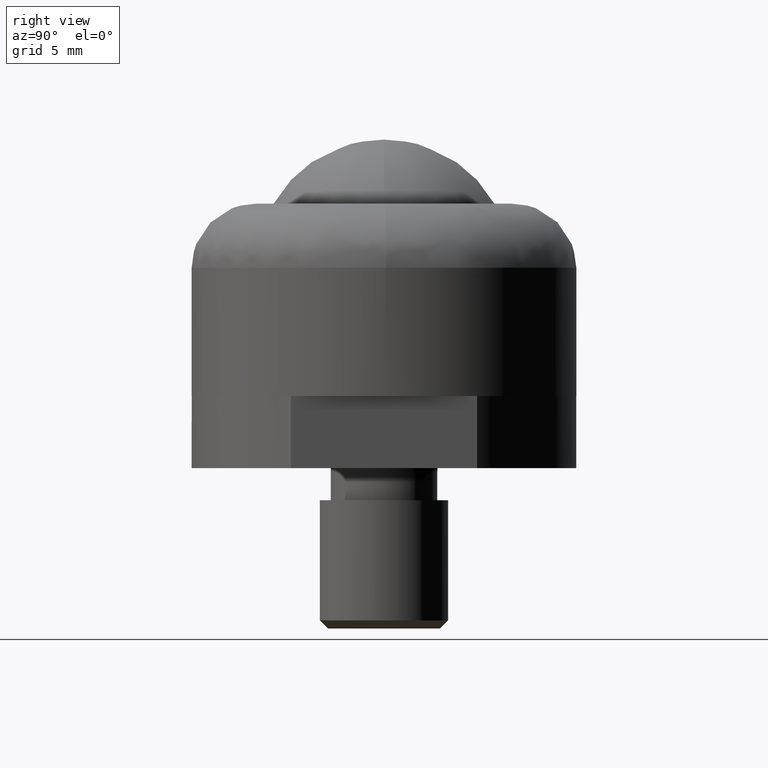
[diagram: clean part render]
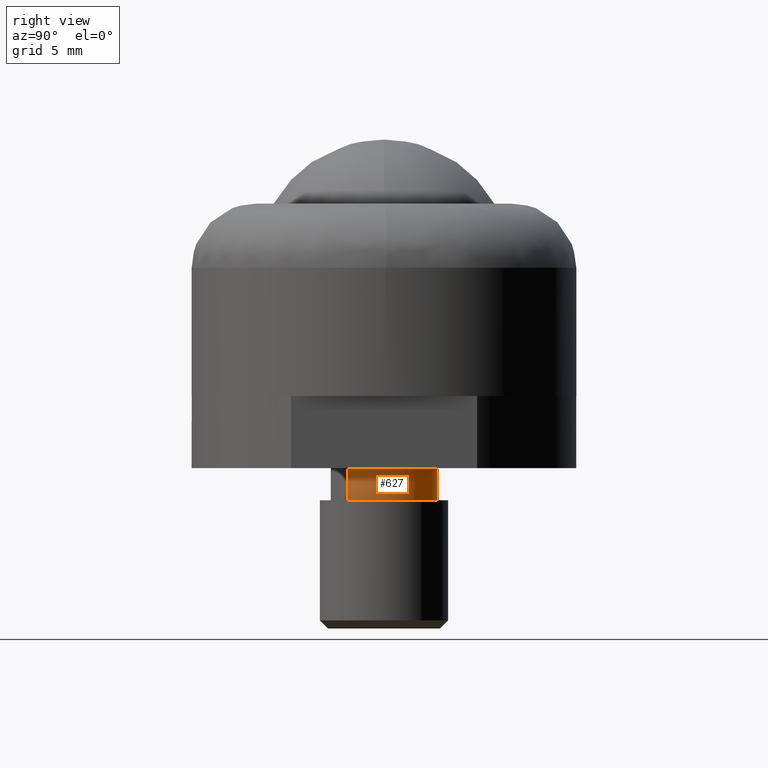
[diagram: same view with one face highlighted and labeled with its STEP entity id]
A machine part, right view. The second image highlights one B-rep face of the part: STEP entity #627.
In plain terms, the highlighted face is a freeform B-spline surface patch.
Its self-contained STEP definition (entity closure, byte-faithful):
#408=CARTESIAN_POINT('',(0.000000444371019,3.323499999999970,-6.500000000000000));
#409=VERTEX_POINT('',#408);
#410=CARTESIAN_POINT('',(3.323500000000000,0.0,-6.500000000000000));
#411=VERTEX_POINT('',#410);
#412=CARTESIAN_POINT('',(0.000000444371019,3.323499999999970,-6.500000000000000));
#413=CARTESIAN_POINT('',(0.271911603296925,3.323569351450588,-6.500000000000008));
#414=CARTESIAN_POINT('',(0.693321190298616,3.271472908365574,-6.499999999999996));
#415=CARTESIAN_POINT('',(1.354530055462943,3.057561176230025,-6.500000000000024));
#416=CARTESIAN_POINT('',(1.894536097440634,2.760374407005867,-6.499999999999962));
#417=CARTESIAN_POINT('',(2.338784918826441,2.377057000006248,-6.500000000000054));
#418=CARTESIAN_POINT('',(2.670187105103781,1.997618704774616,-6.499999999999957));
#419=CARTESIAN_POINT('',(2.908308589919531,1.631608441144572,-6.500000000000057));
#420=CARTESIAN_POINT('',(3.115161008437454,1.187206643667085,-6.499999999999969));
#421=CARTESIAN_POINT('',(3.276732067525988,0.666143411952856,-6.500000000000024));
#422=CARTESIAN_POINT('',(3.323548334212863,0.244713709162017,-6.499999999999993));
#423=CARTESIAN_POINT('',(3.323500000000000,0.0,-6.500000000000000));
#424=B_SPLINE_CURVE_WITH_KNOTS('',3,(#412,#413,#414,#415,#416,#417,#418,#419,#420,#421,#422,#423),.UNSPECIFIED.,.F.,.U.,(4,1,1,1,1,1,1,1,1,4),(0.000000049603239,0.815714728093755,1.264357604121066,2.080077456401043,2.651058144359558,3.018130037182456,3.589143188970531,3.956216753758050,4.486440288351891,5.220574098330921),.UNSPECIFIED.);
#425=EDGE_CURVE('',#409,#411,#424,.T.);
#427=CARTESIAN_POINT('',(2.410781670425908,-2.287746325560419,-6.499999999998471));
#428=VERTEX_POINT('',#427);
#429=CARTESIAN_POINT('',(3.323500000000000,0.0,-6.500000000000000));
#430=CARTESIAN_POINT('',(3.323652371516112,-0.341715382407154,-6.499999999999759));
#431=CARTESIAN_POINT('',(3.239651455175314,-0.880419515982278,-6.499999999999429));
#432=CARTESIAN_POINT('',(2.912782292714735,-1.659037314860605,-6.499999999998883));
#433=CARTESIAN_POINT('',(2.618939289812790,-2.068557741443092,-6.499999999998590));
#434=CARTESIAN_POINT('',(2.410781670425908,-2.287746325560419,-6.499999999998471));
#435=B_SPLINE_CURVE_WITH_KNOTS('',3,(#429,#430,#431,#432,#433,#434),.UNSPECIFIED.,.F.,.U.,(4,1,1,4),(0.000000013205660,1.025086896172769,1.616469289940607,2.523276480037187),.UNSPECIFIED.);
#436=EDGE_CURVE('',#411,#428,#435,.T.);
#466=CARTESIAN_POINT('',(-2.410781670425915,2.287746325560427,-6.499999999998471));
#467=VERTEX_POINT('',#466);
#478=CARTESIAN_POINT('',(-2.410781670425915,2.287746325560427,-6.499999999998471));
#479=CARTESIAN_POINT('',(-2.236754843370734,2.471217506955891,-6.499999999998575));
#480=CARTESIAN_POINT('',(-1.944070405024460,2.716337664830274,-6.499999999998777));
#481=CARTESIAN_POINT('',(-1.445209754755694,3.006126818761274,-6.499999999999072));
#482=CARTESIAN_POINT('',(-0.842832599775785,3.247082636101075,-6.499999999999510));
#483=CARTESIAN_POINT('',(-0.323128164758574,3.323633429407711,-6.499999999999764));
#484=CARTESIAN_POINT('',(0.000000444371019,3.323499999999970,-6.500000000000000));
#485=B_SPLINE_CURVE_WITH_KNOTS('',3,(#478,#479,#480,#481,#482,#483,#484),.UNSPECIFIED.,.F.,.U.,(4,1,1,1,4),(0.000000013518143,0.758615531338136,1.137925030374479,1.727955917028750,2.697298335131412),.UNSPECIFIED.);
#486=EDGE_CURVE('',#467,#409,#485,.T.);
#510=CARTESIAN_POINT('',(2.410781670074012,-2.287746325930898,-4.500000000000000));
#511=VERTEX_POINT('',#510);
#512=CARTESIAN_POINT('',(2.410781670074012,-2.287746325930898,-4.500000000000000));
#513=CARTESIAN_POINT('',(2.410781670425908,-2.287746325560419,-6.499999999998471));
#514=QUASI_UNIFORM_CURVE('',1,(#512,#513),.UNSPECIFIED.,.F.,.U.);
#515=EDGE_CURVE('',#511,#428,#514,.T.);
#544=CARTESIAN_POINT('',(-2.410781670074005,2.287746325930890,-4.500000000000000));
#545=VERTEX_POINT('',#544);
#555=CARTESIAN_POINT('',(-2.410781670074005,2.287746325930890,-4.500000000000000));
#556=CARTESIAN_POINT('',(-2.410781670425915,2.287746325560427,-6.499999999998471));
#557=QUASI_UNIFORM_CURVE('',1,(#555,#556),.UNSPECIFIED.,.F.,.U.);
#558=EDGE_CURVE('',#545,#467,#557,.T.);
#565=CARTESIAN_POINT('',(-2.410781722058978,2.287746432317850,-4.450000000000000));
#566=CARTESIAN_POINT('',(-0.123035289741128,4.698528154376828,-4.450000000000000));
#567=CARTESIAN_POINT('',(2.287746432317850,2.410781722058978,-4.450000000000000));
#568=CARTESIAN_POINT('',(4.698528154376828,0.123035289741128,-4.450000000000000));
#569=CARTESIAN_POINT('',(2.410781722058978,-2.287746432317850,-4.450000000000000));
#570=CARTESIAN_POINT('',(-2.410781722058978,2.287746432317850,-6.551250000000001));
#571=CARTESIAN_POINT('',(-0.123035289741128,4.698528154376828,-6.551250000000001));
#572=CARTESIAN_POINT('',(2.287746432317850,2.410781722058978,-6.551250000000001));
#573=CARTESIAN_POINT('',(4.698528154376828,0.123035289741128,-6.551250000000001));
#574=CARTESIAN_POINT('',(2.410781722058978,-2.287746432317850,-6.551250000000001));
#582=(BOUNDED_SURFACE()B_SPLINE_SURFACE(2,1,((#565,#570),(#566,#571),(#567,#572),(#568,#573),(#569,#574)),.UNSPECIFIED.,.F.,.F.,.U.)B_SPLINE_SURFACE_WITH_KNOTS((3,2,3),(2,2),(0.0,5.506555098187104,11.013110196374210),(0.0,2.101250000000002),.UNSPECIFIED.)GEOMETRIC_REPRESENTATION_ITEM()RATIONAL_B_SPLINE_SURFACE(((1.0,1.0),(0.707106781186548,0.707106781186548),(1.0,1.0),(0.707106781186548,0.707106781186548),(1.0,1.0)))REPRESENTATION_ITEM('')SURFACE());
#583=ORIENTED_EDGE('',*,*,#436,.F.);
#584=ORIENTED_EDGE('',*,*,#425,.F.);
#585=ORIENTED_EDGE('',*,*,#486,.F.);
#586=ORIENTED_EDGE('',*,*,#558,.F.);
#587=CARTESIAN_POINT('',(0.000000444371057,3.323499999999476,-4.500000000000000));
#588=VERTEX_POINT('',#587);
#589=CARTESIAN_POINT('',(-2.410781670074005,2.287746325930890,-4.500000000000000));
#590=CARTESIAN_POINT('',(-2.188451417854174,2.522227386068264,-4.500000000000010));
#591=CARTESIAN_POINT('',(-1.775182453799368,2.846513581006512,-4.499999999999996));
#592=CARTESIAN_POINT('',(-1.185750295604679,3.117599348058747,-4.500000000000004));
#593=CARTESIAN_POINT('',(-0.632151441130561,3.279982569497344,-4.500000000000011));
#594=CARTESIAN_POINT('',(-0.252877055655322,3.323558482833006,-4.499999999999987));
#595=CARTESIAN_POINT('',(0.000000444371057,3.323499999999476,-4.500000000000000));
#596=B_SPLINE_CURVE_WITH_KNOTS('',3,(#589,#590,#591,#592,#593,#594,#595),.UNSPECIFIED.,.F.,.U.,(4,1,1,1,4),(0.000000013517838,0.969342431431405,1.559373317984740,1.938682816943765,2.697298334620176),.UNSPECIFIED.);
#597=EDGE_CURVE('',#545,#588,#596,.T.);
#598=ORIENTED_EDGE('',*,*,#597,.T.);
#599=CARTESIAN_POINT('',(3.323499999999505,0.0,-4.500000000000000));
#600=VERTEX_POINT('',#599);
#601=CARTESIAN_POINT('',(0.000000444371057,3.323499999999476,-4.500000000000000));
#602=CARTESIAN_POINT('',(0.217524921726768,3.323528524137633,-4.500000000000005));
#603=CARTESIAN_POINT('',(0.598175327354397,3.285983792406162,-4.500000000000000));
#604=CARTESIAN_POINT('',(1.215697009453769,3.115139633541715,-4.499999999999999));
#605=CARTESIAN_POINT('',(1.730766133622171,2.859821529674314,-4.499999999999997));
#606=CARTESIAN_POINT('',(2.231910112331256,2.483325616598218,-4.500000000000005));
#607=CARTESIAN_POINT('',(2.618116491587329,2.077689034514160,-4.500000000000001));
#608=CARTESIAN_POINT('',(2.960404603656381,1.551544895096395,-4.499999999999995));
#609=CARTESIAN_POINT('',(3.242749947762451,0.870020169066741,-4.500000000000011));
#610=CARTESIAN_POINT('',(3.323641082493507,0.326299951995641,-4.499999999999998));
#611=CARTESIAN_POINT('',(3.323499999999505,0.0,-4.500000000000000));
#612=B_SPLINE_CURVE_WITH_KNOTS('',3,(#601,#602,#603,#604,#605,#606,#607,#608,#609,#610,#611),.UNSPECIFIED.,.F.,.U.,(4,1,1,1,1,1,1,1,4),(0.000000049603734,0.652571498934749,1.142000156060665,1.916933467693049,2.365589485457209,3.018130037182007,3.589143188969988,4.241717981450096,5.220574098330123),.UNSPECIFIED.);
#613=EDGE_CURVE('',#588,#600,#612,.T.);
#614=ORIENTED_EDGE('',*,*,#613,.T.);
#615=CARTESIAN_POINT('',(3.323499999999505,0.0,-4.500000000000000));
#616=CARTESIAN_POINT('',(3.323527790614506,-0.249697897630274,-4.500000000000001));
#617=CARTESIAN_POINT('',(3.262551926657424,-0.788516657763475,-4.499999999999993));
#618=CARTESIAN_POINT('',(2.967007698540687,-1.583639504046248,-4.500000000000015));
#619=CARTESIAN_POINT('',(2.618912177260321,-2.068540877210439,-4.499999999999981));
#620=CARTESIAN_POINT('',(2.410781670074012,-2.287746325930898,-4.500000000000000));
#621=B_SPLINE_CURVE_WITH_KNOTS('',3,(#615,#616,#617,#618,#619,#620),.UNSPECIFIED.,.F.,.U.,(4,1,1,4),(0.000000013205737,0.749099479074308,1.616469290267762,2.523276480547888),.UNSPECIFIED.);
#622=EDGE_CURVE('',#600,#511,#621,.T.);
#623=ORIENTED_EDGE('',*,*,#622,.T.);
#624=ORIENTED_EDGE('',*,*,#515,.T.);
#625=EDGE_LOOP('',(#583,#584,#585,#586,#598,#614,#623,#624));
#626=FACE_OUTER_BOUND('',#625,.T.);
#627=ADVANCED_FACE('',(#626),#582,.T.);